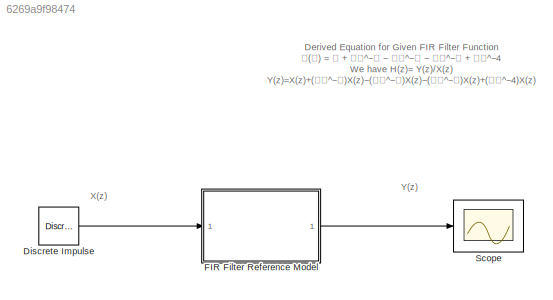
MODEL slx_6269a9f98474
KIND model
CONFIG AbsTol = auto
CONFIG EnableMultiTasking = off
CONFIG FixedStep = auto
CONFIG MaxStep = auto
CONFIG MinStep = auto
CONFIG RelTol = 1e-3
CONFIG SampleTimeConstraint = Unconstrained
CONFIG Solver = VariableStepAuto
CONFIG SolverName = VariableStepAuto
CONFIG StartTime = 0.0
CONFIG StopTime = 10.0
WORKSPACE source: mxarray member
WORKSPACE A: Simulink.Parameter (value not decoded)
WORKSPACE B: Simulink.Parameter (value not decoded)
WORKSPACE C: Simulink.Parameter (value not decoded)
WORKSPACE D: Simulink.Parameter (value not decoded)
BLOCK [Reference] Discrete Impulse  REF=dspsrcs4/Discrete 
Impulse
  Ports = [0, 1]
  SourceBlock = dspsrcs4/Discrete \nImpulse
  SourceProductBaseCode = DS
  SourceType = Discrete Impulse
BLOCK [ModelReference] FIR Filter Reference Model
  ModelNameDialog = Subsystem
  ModelReferenceVersion = 1.5
  Ports = [1, 1]
BLOCK [Scope] Scope
  Floating = off
  NumInputPorts = 1
  Ports = [1]
  ScopeSpecificationString = Simulink.scopes.TimeScopeBlockCfg('CurrentConfiguration', extmgr.ConfigurationSet(extmgr.Configuration('Core','General UI',true),extmgr.Configuration('Core','Source UI',true),extmgr.Configuration('Sources','WiredSimulink',true),extmgr.Configuration('Visuals','Time Domain',true,'SerializedDisplays',{struct('MinYLimReal','-5.125','MaxYLimReal','6.125','YLabelReal','','MinYLimMag','0.00000','MaxYLimM...<+1345ch>
ANNOTATION (root): X(z)
ANNOTATION (root): Y(z)
ANNOTATION (root): Derived Equation for Given FIR Filter Function 𝐇(𝐳) = 𝟏 + 𝟐𝐳^−𝟏 − 𝟑𝐳^−𝟐 − 𝟒𝐳^−𝟑 + 𝟓𝐳^−4 We have H(z)= Y(z)/X(z) Y(z)=X(z)+(𝟐𝐳^−𝟏)X(z)−(𝟑𝐳^−𝟐)X(z)−(𝟒𝐳^−𝟑)X(z)+(𝟓𝐳^−4)X(z)
LINE Discrete Impulse:1 -> FIR Filter Reference Model:1
LINE FIR Filter Reference Model:1 -> Scope:1
